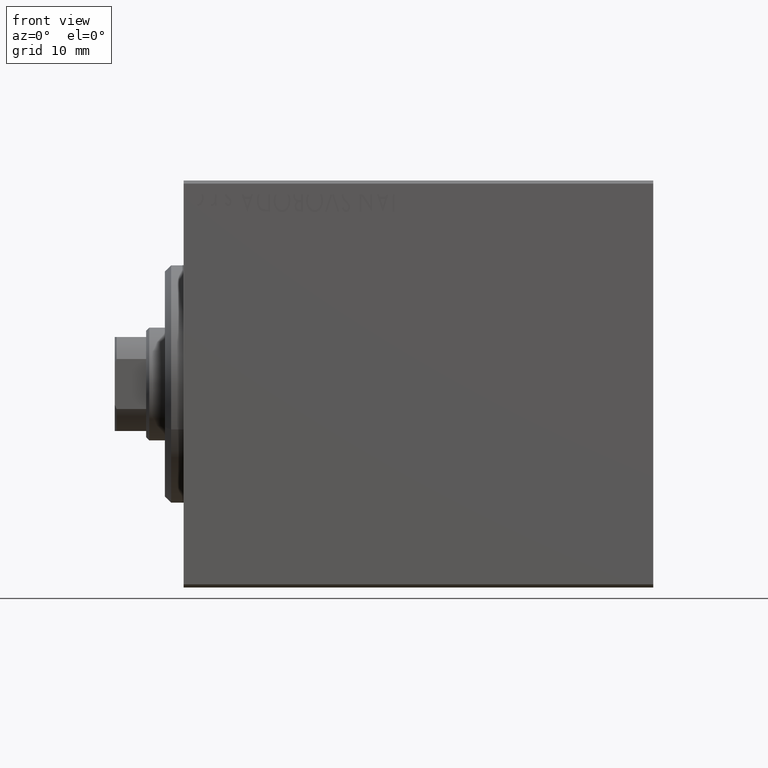
[diagram: clean part render]
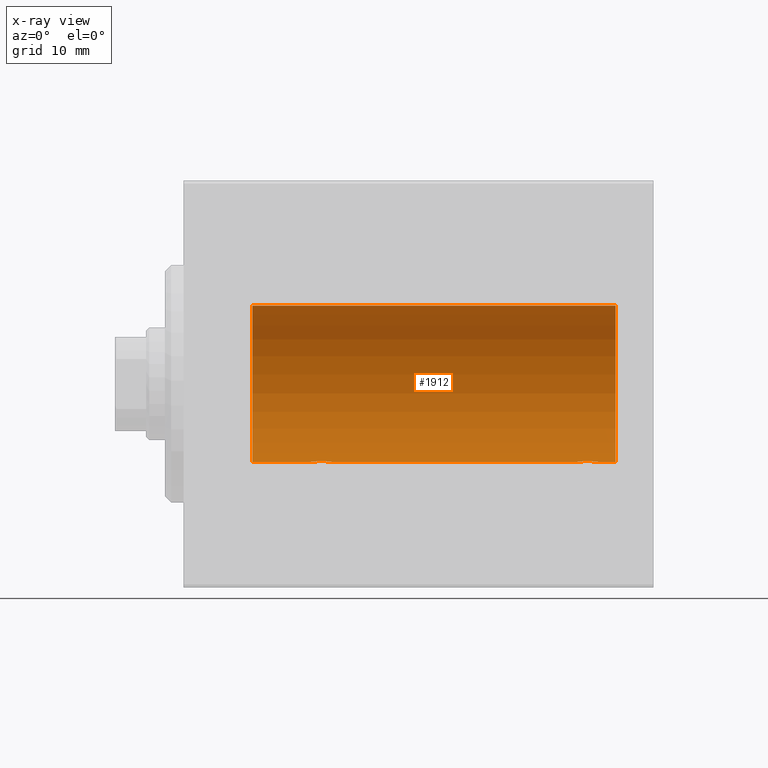
[diagram: x-ray — body ghosted, one internal face saturated and labeled with its STEP entity id]
A machine part, front view, then the same camera in x-ray: the body is ghosted and one INTERNAL B-rep face — a face not visible from any outside direction — is saturated and labeled: STEP entity #1912.
In plain terms, the highlighted cylindrical surface (partial cylindrical patch) has radius 12.5 mm, axis along (-1, -0, -0).
Its self-contained STEP definition (entity closure, byte-faithful):
#92 = VERTEX_POINT ( 'NONE', #7330 ) ;
#298 = FACE_OUTER_BOUND ( 'NONE', #11423, .T. ) ;
#1431 = CARTESIAN_POINT ( 'NONE',  ( 65.01937350851554243, 1.935814255713563359, -12.34922241902462758 ) ) ;
#1685 = B_SPLINE_CURVE_WITH_KNOTS ( 'NONE', 3,
 ( #35926, #34436, #12314, #25913, #25465, #32357, #25021, #18997, #15204, #22122, #2089, #5437, #14163, #28578, #31088, #1431, #15641, #18779, #29237, #18551, #32136, #28799, #42375, #20855, #11656, #39036, #38597, #42812, #5216, #25687 ),
 .UNSPECIFIED., .F., .F.,
 ( 4, 2, 2, 2, 2, 2, 2, 2, 2, 2, 2, 2, 2, 2, 4 ),
 ( 1.231070527911204700E-19, 0.0003914362731607716147, 0.0007828725463215431210, 0.001174308819482314898, 0.001565745092643086242, 0.002348617638964600306, 0.003131490185286114371, 0.003522926458446871620, 0.003914362731607628001, 0.004305799004768385251, 0.004697235277929141632, 0.005088671551089898881, 0.005480107824250656130, 0.005871544097411412512, 0.006262980370572170628 ),
 .UNSPECIFIED. ) ;
#1912 = ADVANCED_FACE ( 'NONE', ( #298 ), #14069, .F. ) ;
#2048 = CARTESIAN_POINT ( 'NONE',  ( 62.50000000000000000, -6.782673595553849353E-15, -12.50000000000000000 ) ) ;
#2089 = CARTESIAN_POINT ( 'NONE',  ( 63.49316879552500836, 1.747608771958128360, -12.37764291807175532 ) ) ;
#2422 = CARTESIAN_POINT ( 'NONE',  ( 69.00000000000000000, 0.000000000000000000, 12.50000000000000000 ) ) ;
#2427 = CARTESIAN_POINT ( 'NONE',  ( 23.73470742397611843, 1.003863686549172352, -12.46009879577771606 ) ) ;
#2641 = CARTESIAN_POINT ( 'NONE',  ( 24.00000000000000000, 1.530808426277417854E-15, -12.50000000000000000 ) ) ;
#2657 = VERTEX_POINT ( 'NONE', #7646 ) ;
#4403 = DIRECTION ( 'NONE',  ( -1.000000000000000000, -0.000000000000000000, -0.000000000000000000 ) ) ;
#4852 = DIRECTION ( 'NONE',  ( -1.000000000000000000, 0.000000000000000000, 0.000000000000000000 ) ) ;
#5216 = CARTESIAN_POINT ( 'NONE',  ( 66.50000000000000000, 0.1306394121199378755, -12.50000000000000178 ) ) ;
#5437 = CARTESIAN_POINT ( 'NONE',  ( 63.97436412829508612, 1.947190906025034751, -12.34781876294798586 ) ) ;
#5559 = CARTESIAN_POINT ( 'NONE',  ( 23.00335814299181436, 1.734998657226765939, -12.37922086519035325 ) ) ;
#5563 = LINE ( 'NONE', #43370, #8742 ) ;
#5788 = EDGE_CURVE ( 'NONE', #25106, #30879, #24304, .T. ) ;
#5914 = CIRCLE ( 'NONE', #16520, 12.50000000000000000 ) ;
#5990 = CARTESIAN_POINT ( 'NONE',  ( 22.12992629360264729, 2.000049200055402210, -12.33895470450623044 ) ) ;
#6134 = ORIENTED_EDGE ( 'NONE', *, *, #5788, .T. ) ;
#6163 = CARTESIAN_POINT ( 'NONE',  ( 10.99999999999999645, 0.000000000000000000, 0.000000000000000000 ) ) ;
#7070 = LINE ( 'NONE', #17279, #30798 ) ;
#7330 = CARTESIAN_POINT ( 'NONE',  ( 69.00000000000000000, 0.000000000000000000, 12.50000000000000000 ) ) ;
#7646 = CARTESIAN_POINT ( 'NONE',  ( 10.99999999999999645, 0.000000000000000000, 12.50000000000000000 ) ) ;
#8322 = ORIENTED_EDGE ( 'NONE', *, *, #27451, .T. ) ;
#8742 = VECTOR ( 'NONE', #23124, 1000.000000000000000 ) ;
#8886 = CARTESIAN_POINT ( 'NONE',  ( 20.20300788371381273, 0.8876934327478117615, -12.46903010196599304 ) ) ;
#9107 = CARTESIAN_POINT ( 'NONE',  ( 20.10252270298193622, 0.6455696738844897142, -12.48390768591463207 ) ) ;
#9322 = CARTESIAN_POINT ( 'NONE',  ( 23.79742491916155700, 0.8868029758979399935, -12.46909283808506430 ) ) ;
#9540 = CARTESIAN_POINT ( 'NONE',  ( 23.98690384766256400, 0.2633501011236120681, -12.49788564268284041 ) ) ;
#9710 = DIRECTION ( 'NONE',  ( -1.000000000000000000, 0.000000000000000000, 0.000000000000000000 ) ) ;
#9753 = CARTESIAN_POINT ( 'NONE',  ( 21.73788193668374902, 1.999901172190678533, -12.33897869807161385 ) ) ;
#10141 = ORIENTED_EDGE ( 'NONE', *, *, #29698, .F. ) ;
#10259 = VERTEX_POINT ( 'NONE', #2048 ) ;
#11423 = EDGE_LOOP ( 'NONE', ( #14066, #19030, #21026, #30323, #36311, #6134, #10141, #8322 ) ) ;
#11656 = CARTESIAN_POINT ( 'NONE',  ( 66.29742491916155700, 0.8868029758979355526, -12.46909283808506430 ) ) ;
#12004 = EDGE_CURVE ( 'NONE', #2657, #43294, #32504, .T. ) ;
#12210 = CARTESIAN_POINT ( 'NONE',  ( 22.51937350851555308, 1.935814255713574905, -12.34922241902463114 ) ) ;
#12314 = CARTESIAN_POINT ( 'NONE',  ( 62.51301208516349561, 0.2624928479599840658, -12.49789934882883458 ) ) ;
#12432 = CARTESIAN_POINT ( 'NONE',  ( 19.99999999999999645, 0.1323736289504319763, -12.50000000000000000 ) ) ;
#13279 = AXIS2_PLACEMENT_3D ( 'NONE', #6163, #9710, #37308 ) ;
#13846 = DIRECTION ( 'NONE',  ( 0.000000000000000000, 0.000000000000000000, 1.000000000000000000 ) ) ;
#14066 = ORIENTED_EDGE ( 'NONE', *, *, #40109, .F. ) ;
#14069 = CYLINDRICAL_SURFACE ( 'NONE', #38664, 12.50000000000000000 ) ;
#14163 = CARTESIAN_POINT ( 'NONE',  ( 64.23788193668377744, 1.999901172190670762, -12.33897869807161740 ) ) ;
#14794 = CARTESIAN_POINT ( 'NONE',  ( 24.00000000000000000, 1.530808426277417854E-15, -12.50000000000000000 ) ) ;
#15204 = CARTESIAN_POINT ( 'NONE',  ( 62.99398366327206844, 1.322451657002063241, -12.43019346654085133 ) ) ;
#15641 = CARTESIAN_POINT ( 'NONE',  ( 65.14415233770293412, 1.897967064543081950, -12.35517291625592051 ) ) ;
#15714 = EDGE_CURVE ( 'NONE', #92, #2657, #32918, .T. ) ;
#15759 = CARTESIAN_POINT ( 'NONE',  ( 21.47436412829510033, 1.947190906025044077, -12.34781876294798053 ) ) ;
#15975 = DIRECTION ( 'NONE',  ( -1.000000000000000000, -0.000000000000000000, -0.000000000000000000 ) ) ;
#15979 = CARTESIAN_POINT ( 'NONE',  ( 23.89773031393658087, 0.6448065707253023415, -12.48394649977302073 ) ) ;
#16520 = AXIS2_PLACEMENT_3D ( 'NONE', #17964, #4852, #38890 ) ;
#17279 = CARTESIAN_POINT ( 'NONE',  ( 69.00000000000000000, 1.530808498934191521E-15, -12.50000000000000000 ) ) ;
#17964 = CARTESIAN_POINT ( 'NONE',  ( 69.00000000000000000, 0.000000000000000000, 0.000000000000000000 ) ) ;
#18551 = CARTESIAN_POINT ( 'NONE',  ( 65.71980790594581379, 1.590288205413969314, -12.39864157855465088 ) ) ;
#18595 = CARTESIAN_POINT ( 'NONE',  ( 66.50000000000000000, 1.530808426270318106E-15, -12.50000000000000000 ) ) ;
#18779 = CARTESIAN_POINT ( 'NONE',  ( 65.38656313533014952, 1.797558627508990758, -12.37018026341338484 ) ) ;
#18997 = CARTESIAN_POINT ( 'NONE',  ( 62.90963319990593305, 1.219754986802269237, -12.44082361696003147 ) ) ;
#19030 = ORIENTED_EDGE ( 'NONE', *, *, #34060, .F. ) ;
#19121 = CARTESIAN_POINT ( 'NONE',  ( 23.21980790594580313, 1.590288205413975309, -12.39864157855465088 ) ) ;
#19330 = CARTESIAN_POINT ( 'NONE',  ( 23.58991408680628155, 1.220297236145721609, -12.44076681548080288 ) ) ;
#19550 = CARTESIAN_POINT ( 'NONE',  ( 20.77033506126850426, 1.598680238462369951, -12.39873273758732175 ) ) ;
#20855 = CARTESIAN_POINT ( 'NONE',  ( 66.23470742397610422, 1.003863686549167689, -12.46009879577771606 ) ) ;
#21026 = ORIENTED_EDGE ( 'NONE', *, *, #15714, .T. ) ;
#22122 = CARTESIAN_POINT ( 'NONE',  ( 63.27033506126847584, 1.598680238462355963, -12.39873273758731997 ) ) ;
#22690 = CARTESIAN_POINT ( 'NONE',  ( 22.26269462454597914, 1.986986967296540119, -12.34109209020652465 ) ) ;
#22896 = CARTESIAN_POINT ( 'NONE',  ( 24.00000000000000711, 0.1306394121199392910, -12.50000000000000533 ) ) ;
#23120 = CARTESIAN_POINT ( 'NONE',  ( 23.32102833500698225, 1.507394620545640773, -12.40913174964213184 ) ) ;
#23124 = DIRECTION ( 'NONE',  ( -1.000000000000000000, -0.000000000000000000, -0.000000000000000000 ) ) ;
#24304 = B_SPLINE_CURVE_WITH_KNOTS ( 'NONE', 3,
 ( #29136, #12432, #29999, #42937, #9107, #8886, #36909, #32702, #42714, #19550, #40250, #15759, #9753, #5990, #22690, #12210, #39376, #29575, #5559, #19121, #23120, #36263, #19330, #2427, #9322, #15979, #43150, #9540, #22896, #2641 ),
 .UNSPECIFIED., .F., .F.,
 ( 4, 2, 2, 2, 2, 2, 2, 2, 2, 2, 2, 2, 2, 2, 4 ),
 ( 3.611342868676865251E-19, 0.0003914362731607586585, 0.0007828725463215168833, 0.001174308819482275217, 0.001565745092643033550, 0.002348617638964549999, 0.003131490185286066666, 0.003522926458446830420, 0.003914362731607594174, 0.004305799004768357495, 0.004697235277929121683, 0.005088671551089885003, 0.005480107824250649191, 0.005871544097411412512, 0.006262980370572176700 ),
 .UNSPECIFIED. ) ;
#25021 = CARTESIAN_POINT ( 'NONE',  ( 62.76446744561867064, 1.002494658017146767, -12.46021263690097314 ) ) ;
#25106 = VERTEX_POINT ( 'NONE', #43731 ) ;
#25465 = CARTESIAN_POINT ( 'NONE',  ( 62.60252270298195754, 0.6455696738844866056, -12.48390768591463562 ) ) ;
#25687 = CARTESIAN_POINT ( 'NONE',  ( 66.50000000000000000, 1.530808426270318106E-15, -12.50000000000000000 ) ) ;
#25913 = CARTESIAN_POINT ( 'NONE',  ( 62.56395648222637362, 0.5184196815545989434, -12.48990118705761176 ) ) ;
#26596 = VERTEX_POINT ( 'NONE', #18595 ) ;
#27451 = EDGE_CURVE ( 'NONE', #10259, #26596, #1685, .T. ) ;
#27662 = CARTESIAN_POINT ( 'NONE',  ( 69.00000000000000000, 0.000000000000000000, 0.000000000000000000 ) ) ;
#27757 = DIRECTION ( 'NONE',  ( -1.000000000000000000, -0.000000000000000000, -0.000000000000000000 ) ) ;
#28578 = CARTESIAN_POINT ( 'NONE',  ( 64.62992629360267927, 2.000049200055391996, -12.33895470450623044 ) ) ;
#28799 = CARTESIAN_POINT ( 'NONE',  ( 66.00733550364320479, 1.321095788880533695, -12.43034574091277911 ) ) ;
#29136 = CARTESIAN_POINT ( 'NONE',  ( 19.99999999999999645, -3.966047509268588167E-15, -12.50000000000000000 ) ) ;
#29237 = CARTESIAN_POINT ( 'NONE',  ( 65.50335814299182857, 1.734998657226759278, -12.37922086519035858 ) ) ;
#29575 = CARTESIAN_POINT ( 'NONE',  ( 22.88656313533016373, 1.797558627508998086, -12.37018026341338839 ) ) ;
#29698 = EDGE_CURVE ( 'NONE', #10259, #30879, #37348, .T. ) ;
#29999 = CARTESIAN_POINT ( 'NONE',  ( 20.01301208516349206, 0.2624928479599882847, -12.49789934882883458 ) ) ;
#30323 = ORIENTED_EDGE ( 'NONE', *, *, #12004, .T. ) ;
#30798 = VECTOR ( 'NONE', #27757, 1000.000000000000000 ) ;
#30879 = VERTEX_POINT ( 'NONE', #14794 ) ;
#31088 = CARTESIAN_POINT ( 'NONE',  ( 64.76269462454600045, 1.986986967296529905, -12.34109209020653175 ) ) ;
#32136 = CARTESIAN_POINT ( 'NONE',  ( 65.82102833500698580, 1.507394620545635222, -12.40913174964213184 ) ) ;
#32357 = CARTESIAN_POINT ( 'NONE',  ( 62.70300788371383049, 0.8876934327478079867, -12.46903010196599659 ) ) ;
#32504 = CIRCLE ( 'NONE', #13279, 12.50000000000000000 ) ;
#32702 = CARTESIAN_POINT ( 'NONE',  ( 20.40963319990594016, 1.219754986802279451, -12.44082361696003503 ) ) ;
#32918 = LINE ( 'NONE', #2422, #42434 ) ;
#34060 = EDGE_CURVE ( 'NONE', #92, #39269, #5914, .T. ) ;
#34098 = CARTESIAN_POINT ( 'NONE',  ( 69.00000000000000000, 1.530808498934191521E-15, -12.50000000000000000 ) ) ;
#34436 = CARTESIAN_POINT ( 'NONE',  ( 62.50000000000001421, 0.1323736289504287289, -12.50000000000000533 ) ) ;
#35926 = CARTESIAN_POINT ( 'NONE',  ( 62.50000000000000000, -6.782673595553849353E-15, -12.50000000000000000 ) ) ;
#36263 = CARTESIAN_POINT ( 'NONE',  ( 23.50733550364322255, 1.321095788880538136, -12.43034574091277911 ) ) ;
#36311 = ORIENTED_EDGE ( 'NONE', *, *, #38304, .F. ) ;
#36909 = CARTESIAN_POINT ( 'NONE',  ( 20.26446744561862801, 1.002494658017155871, -12.46021263690096958 ) ) ;
#37308 = DIRECTION ( 'NONE',  ( 0.000000000000000000, 0.000000000000000000, 1.000000000000000000 ) ) ;
#37348 = LINE ( 'NONE', #37794, #42075 ) ;
#37696 = CARTESIAN_POINT ( 'NONE',  ( 10.99999999999999645, 1.530808498934191521E-15, -12.50000000000000000 ) ) ;
#37794 = CARTESIAN_POINT ( 'NONE',  ( 69.00000000000000000, 1.530808498934191521E-15, -12.50000000000000000 ) ) ;
#38304 = EDGE_CURVE ( 'NONE', #25106, #43294, #5563, .T. ) ;
#38597 = CARTESIAN_POINT ( 'NONE',  ( 66.43561774521847951, 0.5201193324741335555, -12.48983485452575160 ) ) ;
#38664 = AXIS2_PLACEMENT_3D ( 'NONE', #27662, #41236, #13846 ) ;
#38890 = DIRECTION ( 'NONE',  ( 0.000000000000000000, 0.000000000000000000, 1.000000000000000000 ) ) ;
#39036 = CARTESIAN_POINT ( 'NONE',  ( 66.39773031393660574, 0.6448065707252987888, -12.48394649977302251 ) ) ;
#39269 = VERTEX_POINT ( 'NONE', #34098 ) ;
#39376 = CARTESIAN_POINT ( 'NONE',  ( 22.64415233770293412, 1.897967064543090165, -12.35517291625592051 ) ) ;
#40109 = EDGE_CURVE ( 'NONE', #39269, #26596, #7070, .T. ) ;
#40250 = CARTESIAN_POINT ( 'NONE',  ( 20.99316879552500481, 1.747608771958139906, -12.37764291807175354 ) ) ;
#41236 = DIRECTION ( 'NONE',  ( -1.000000000000000000, -0.000000000000000000, -0.000000000000000000 ) ) ;
#42075 = VECTOR ( 'NONE', #4403, 1000.000000000000000 ) ;
#42375 = CARTESIAN_POINT ( 'NONE',  ( 66.08991408680628865, 1.220297236145716724, -12.44076681548080465 ) ) ;
#42434 = VECTOR ( 'NONE', #15975, 1000.000000000000000 ) ;
#42714 = CARTESIAN_POINT ( 'NONE',  ( 20.49398366327207910, 1.322451657002076120, -12.43019346654084956 ) ) ;
#42812 = CARTESIAN_POINT ( 'NONE',  ( 66.48690384766254624, 0.2633501011236129563, -12.49788564268283686 ) ) ;
#42937 = CARTESIAN_POINT ( 'NONE',  ( 20.06395648222636652, 0.5184196815546032733, -12.48990118705761532 ) ) ;
#43150 = CARTESIAN_POINT ( 'NONE',  ( 23.93561774521849728, 0.5201193324741352209, -12.48983485452574982 ) ) ;
#43294 = VERTEX_POINT ( 'NONE', #37696 ) ;
#43370 = CARTESIAN_POINT ( 'NONE',  ( 69.00000000000000000, 1.530808498934191521E-15, -12.50000000000000000 ) ) ;
#43731 = CARTESIAN_POINT ( 'NONE',  ( 19.99999999999999645, -3.966047509268588167E-15, -12.50000000000000000 ) ) ;